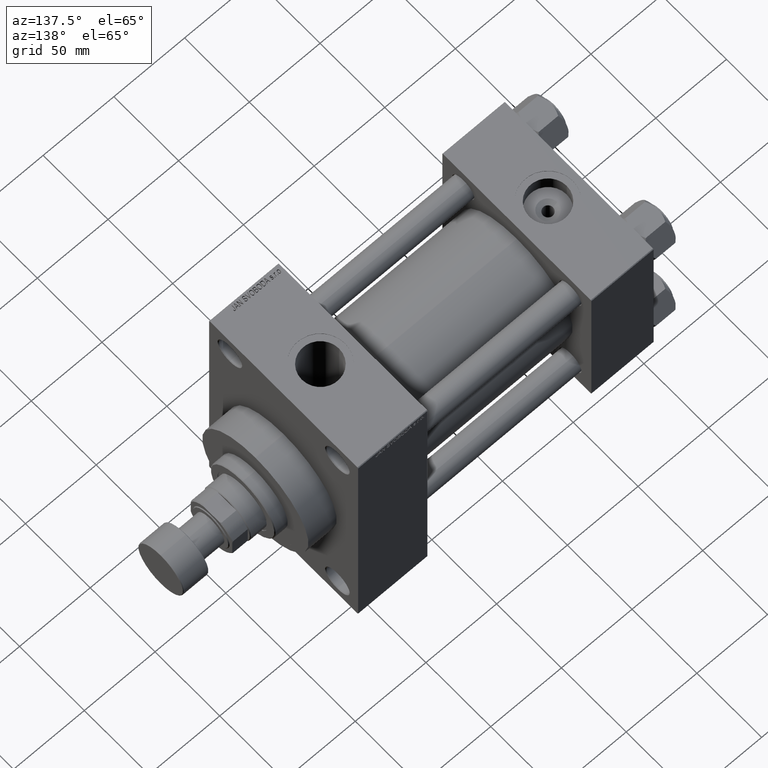
[diagram: clean part render]
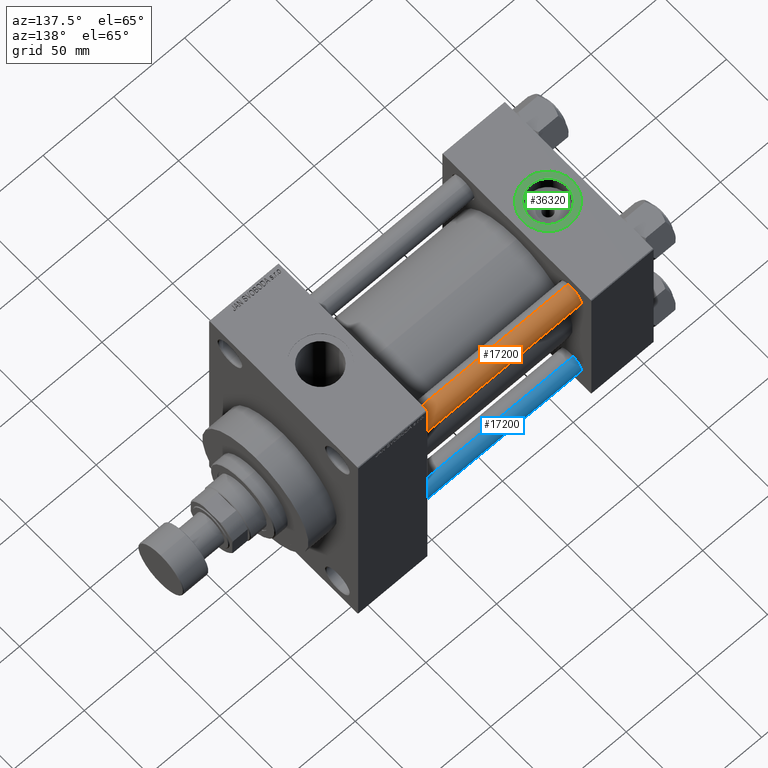
[diagram: same view with three faces highlighted in distinct colors, each labeled with its STEP entity id]
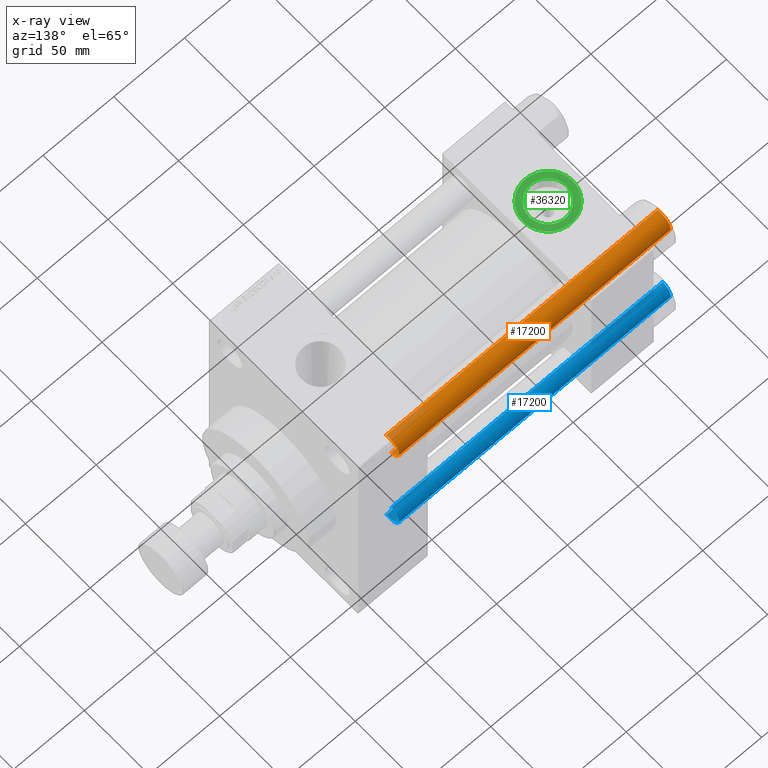
[diagram: x-ray of the same camera — body ghosted, the three highlighted faces saturated]
A machine part, auxiliary view with three faces highlighted in distinct colors.
The next image is the same camera in x-ray (body ghosted, the three faces saturated) — at least one of them is partly hidden behind the body in this view.
Their STEP definitions:

[orange] entity #17200 — the highlighted cylindrical surface (edge-blend (fillet) strip) has radius 8 mm, axis along (-1, -0, 0).
#291 = VECTOR ( 'NONE', #33775, 1000.000000000000000 ) ;
#482 = CYLINDRICAL_SURFACE ( 'NONE', #48120, 8.000000000000000000 ) ;
#1542 = VERTEX_POINT ( 'NONE', #43551 ) ;
#1928 = CARTESIAN_POINT ( 'NONE',  ( 8.000000000000000000, 9.797174393178825657E-16, 192.4999999999999716 ) ) ;
#4081 = LINE ( 'NONE', #23046, #291 ) ;
#8041 = CARTESIAN_POINT ( 'NONE',  ( 0.000000000000000000, 0.000000000000000000, 193.0000000000000000 ) ) ;
#8276 = FACE_OUTER_BOUND ( 'NONE', #18537, .T. ) ;
#9064 = CIRCLE ( 'NONE', #12205, 8.000000000000000000 ) ;
#11379 = DIRECTION ( 'NONE',  ( -0.000000000000000000, -0.000000000000000000, -1.000000000000000000 ) ) ;
#11991 = VERTEX_POINT ( 'NONE', #28298 ) ;
#12205 = AXIS2_PLACEMENT_3D ( 'NONE', #24014, #12840, #27659 ) ;
#12840 = DIRECTION ( 'NONE',  ( 0.000000000000000000, 0.000000000000000000, -1.000000000000000000 ) ) ;
#12929 = DIRECTION ( 'NONE',  ( -0.000000000000000000, -0.000000000000000000, 1.000000000000000000 ) ) ;
#13160 = CARTESIAN_POINT ( 'NONE',  ( 0.000000000000000000, 0.000000000000000000, 0.5000000000000559552 ) ) ;
#13792 = EDGE_CURVE ( 'NONE', #21704, #1542, #4081, .T. ) ;
#17048 = DIRECTION ( 'NONE',  ( 1.000000000000000000, 0.000000000000000000, 0.000000000000000000 ) ) ;
#17200 = ADVANCED_FACE ( 'NONE', ( #8276 ), #482, .T. ) ;
#17228 = ORIENTED_EDGE ( 'NONE', *, *, #31314, .T. ) ;
#17677 = AXIS2_PLACEMENT_3D ( 'NONE', #13160, #12929, #17048 ) ;
#18537 = EDGE_LOOP ( 'NONE', ( #17228, #21096, #20101, #38857 ) ) ;
#20101 = ORIENTED_EDGE ( 'NONE', *, *, #36361, .T. ) ;
#20808 = EDGE_CURVE ( 'NONE', #11991, #23918, #44232, .T. ) ;
#21096 = ORIENTED_EDGE ( 'NONE', *, *, #13792, .T. ) ;
#21704 = VERTEX_POINT ( 'NONE', #1928 ) ;
#23046 = CARTESIAN_POINT ( 'NONE',  ( 8.000000000000000000, 9.797174393178825657E-16, 193.0000000000000000 ) ) ;
#23918 = VERTEX_POINT ( 'NONE', #41532 ) ;
#24014 = CARTESIAN_POINT ( 'NONE',  ( 0.000000000000000000, 0.000000000000000000, 192.4999999999999716 ) ) ;
#27659 = DIRECTION ( 'NONE',  ( 1.000000000000000000, 0.000000000000000000, 0.000000000000000000 ) ) ;
#28298 = CARTESIAN_POINT ( 'NONE',  ( -8.000000000000000000, 0.000000000000000000, 192.4999999999999716 ) ) ;
#29866 = CARTESIAN_POINT ( 'NONE',  ( -8.000000000000000000, 0.000000000000000000, 193.0000000000000000 ) ) ;
#30170 = DIRECTION ( 'NONE',  ( -1.000000000000000000, 0.000000000000000000, 0.000000000000000000 ) ) ;
#31314 = EDGE_CURVE ( 'NONE', #11991, #21704, #9064, .T. ) ;
#33775 = DIRECTION ( 'NONE',  ( -0.000000000000000000, -0.000000000000000000, -1.000000000000000000 ) ) ;
#34544 = DIRECTION ( 'NONE',  ( -0.000000000000000000, -0.000000000000000000, -1.000000000000000000 ) ) ;
#35266 = VECTOR ( 'NONE', #11379, 1000.000000000000000 ) ;
#36361 = EDGE_CURVE ( 'NONE', #1542, #23918, #48005, .T. ) ;
#38857 = ORIENTED_EDGE ( 'NONE', *, *, #20808, .F. ) ;
#41532 = CARTESIAN_POINT ( 'NONE',  ( -8.000000000000000000, 0.000000000000000000, 0.5000000000000559552 ) ) ;
#43551 = CARTESIAN_POINT ( 'NONE',  ( 8.000000000000000000, 9.797174393178825657E-16, 0.5000000000000559552 ) ) ;
#44232 = LINE ( 'NONE', #29866, #35266 ) ;
#48005 = CIRCLE ( 'NONE', #17677, 8.000000000000000000 ) ;
#48120 = AXIS2_PLACEMENT_3D ( 'NONE', #8041, #34544, #30170 ) ;

[blue] entity #17200 — the highlighted cylindrical surface (edge-blend (fillet) strip) has radius 8 mm, axis along (1, -0, 0).
#291 = VECTOR ( 'NONE', #33775, 1000.000000000000000 ) ;
#482 = CYLINDRICAL_SURFACE ( 'NONE', #48120, 8.000000000000000000 ) ;
#1542 = VERTEX_POINT ( 'NONE', #43551 ) ;
#1928 = CARTESIAN_POINT ( 'NONE',  ( 8.000000000000000000, 9.797174393178825657E-16, 192.4999999999999716 ) ) ;
#4081 = LINE ( 'NONE', #23046, #291 ) ;
#8041 = CARTESIAN_POINT ( 'NONE',  ( 0.000000000000000000, 0.000000000000000000, 193.0000000000000000 ) ) ;
#8276 = FACE_OUTER_BOUND ( 'NONE', #18537, .T. ) ;
#9064 = CIRCLE ( 'NONE', #12205, 8.000000000000000000 ) ;
#11379 = DIRECTION ( 'NONE',  ( -0.000000000000000000, -0.000000000000000000, -1.000000000000000000 ) ) ;
#11991 = VERTEX_POINT ( 'NONE', #28298 ) ;
#12205 = AXIS2_PLACEMENT_3D ( 'NONE', #24014, #12840, #27659 ) ;
#12840 = DIRECTION ( 'NONE',  ( 0.000000000000000000, 0.000000000000000000, -1.000000000000000000 ) ) ;
#12929 = DIRECTION ( 'NONE',  ( -0.000000000000000000, -0.000000000000000000, 1.000000000000000000 ) ) ;
#13160 = CARTESIAN_POINT ( 'NONE',  ( 0.000000000000000000, 0.000000000000000000, 0.5000000000000559552 ) ) ;
#13792 = EDGE_CURVE ( 'NONE', #21704, #1542, #4081, .T. ) ;
#17048 = DIRECTION ( 'NONE',  ( 1.000000000000000000, 0.000000000000000000, 0.000000000000000000 ) ) ;
#17200 = ADVANCED_FACE ( 'NONE', ( #8276 ), #482, .T. ) ;
#17228 = ORIENTED_EDGE ( 'NONE', *, *, #31314, .T. ) ;
#17677 = AXIS2_PLACEMENT_3D ( 'NONE', #13160, #12929, #17048 ) ;
#18537 = EDGE_LOOP ( 'NONE', ( #17228, #21096, #20101, #38857 ) ) ;
#20101 = ORIENTED_EDGE ( 'NONE', *, *, #36361, .T. ) ;
#20808 = EDGE_CURVE ( 'NONE', #11991, #23918, #44232, .T. ) ;
#21096 = ORIENTED_EDGE ( 'NONE', *, *, #13792, .T. ) ;
#21704 = VERTEX_POINT ( 'NONE', #1928 ) ;
#23046 = CARTESIAN_POINT ( 'NONE',  ( 8.000000000000000000, 9.797174393178825657E-16, 193.0000000000000000 ) ) ;
#23918 = VERTEX_POINT ( 'NONE', #41532 ) ;
#24014 = CARTESIAN_POINT ( 'NONE',  ( 0.000000000000000000, 0.000000000000000000, 192.4999999999999716 ) ) ;
#27659 = DIRECTION ( 'NONE',  ( 1.000000000000000000, 0.000000000000000000, 0.000000000000000000 ) ) ;
#28298 = CARTESIAN_POINT ( 'NONE',  ( -8.000000000000000000, 0.000000000000000000, 192.4999999999999716 ) ) ;
#29866 = CARTESIAN_POINT ( 'NONE',  ( -8.000000000000000000, 0.000000000000000000, 193.0000000000000000 ) ) ;
#30170 = DIRECTION ( 'NONE',  ( -1.000000000000000000, 0.000000000000000000, 0.000000000000000000 ) ) ;
#31314 = EDGE_CURVE ( 'NONE', #11991, #21704, #9064, .T. ) ;
#33775 = DIRECTION ( 'NONE',  ( -0.000000000000000000, -0.000000000000000000, -1.000000000000000000 ) ) ;
#34544 = DIRECTION ( 'NONE',  ( -0.000000000000000000, -0.000000000000000000, -1.000000000000000000 ) ) ;
#35266 = VECTOR ( 'NONE', #11379, 1000.000000000000000 ) ;
#36361 = EDGE_CURVE ( 'NONE', #1542, #23918, #48005, .T. ) ;
#38857 = ORIENTED_EDGE ( 'NONE', *, *, #20808, .F. ) ;
#41532 = CARTESIAN_POINT ( 'NONE',  ( -8.000000000000000000, 0.000000000000000000, 0.5000000000000559552 ) ) ;
#43551 = CARTESIAN_POINT ( 'NONE',  ( 8.000000000000000000, 9.797174393178825657E-16, 0.5000000000000559552 ) ) ;
#44232 = LINE ( 'NONE', #29866, #35266 ) ;
#48005 = CIRCLE ( 'NONE', #17677, 8.000000000000000000 ) ;
#48120 = AXIS2_PLACEMENT_3D ( 'NONE', #8041, #34544, #30170 ) ;

[green] entity #36320 — the highlighted planar face has unit normal (0, 0, 1).
#365 = CARTESIAN_POINT ( 'NONE',  ( 8.779999999999994031, -7.054634311411234321E-15, 57.30000000000000426 ) ) ;
#1009 = FACE_BOUND ( 'NONE', #30908, .T. ) ;
#1014 = AXIS2_PLACEMENT_3D ( 'NONE', #15430, #26603, #22961 ) ;
#1075 = CARTESIAN_POINT ( 'NONE',  ( 4.499999999999997335, -6.530485481376167224E-15, 57.30000000000000426 ) ) ;
#1483 = ORIENTED_EDGE ( 'NONE', *, *, #29130, .T. ) ;
#2682 = FACE_OUTER_BOUND ( 'NONE', #38482, .T. ) ;
#4838 = AXIS2_PLACEMENT_3D ( 'NONE', #32774, #35930, #28618 ) ;
#7572 = AXIS2_PLACEMENT_3D ( 'NONE', #24578, #46263, #47214 ) ;
#8698 = CIRCLE ( 'NONE', #4838, 13.22000000000000242 ) ;
#9838 = EDGE_CURVE ( 'NONE', #16691, #12571, #8698, .T. ) ;
#11460 = DIRECTION ( 'NONE',  ( 0.000000000000000000, 0.000000000000000000, 1.000000000000000000 ) ) ;
#12571 = VERTEX_POINT ( 'NONE', #365 ) ;
#12660 = CIRCLE ( 'NONE', #1014, 17.50000000000000000 ) ;
#12696 = VERTEX_POINT ( 'NONE', #1075 ) ;
#12871 = ORIENTED_EDGE ( 'NONE', *, *, #19029, .T. ) ;
#13207 = DIRECTION ( 'NONE',  ( 0.000000000000000000, 0.000000000000000000, 1.000000000000000000 ) ) ;
#13699 = CARTESIAN_POINT ( 'NONE',  ( 35.21999999999999886, -8.673617379884035472E-15, 57.30000000000000426 ) ) ;
#14411 = EDGE_CURVE ( 'NONE', #12571, #16691, #45385, .T. ) ;
#15226 = AXIS2_PLACEMENT_3D ( 'NONE', #38754, #13207, #20264 ) ;
#15430 = CARTESIAN_POINT ( 'NONE',  ( 22.00000000000000000, -8.673617379884035472E-15, 57.30000000000000426 ) ) ;
#16691 = VERTEX_POINT ( 'NONE', #13699 ) ;
#17405 = AXIS2_PLACEMENT_3D ( 'NONE', #37490, #11460, #19232 ) ;
#18191 = ORIENTED_EDGE ( 'NONE', *, *, #9838, .F. ) ;
#19029 = EDGE_CURVE ( 'NONE', #19905, #12696, #12660, .T. ) ;
#19232 = DIRECTION ( 'NONE',  ( 1.000000000000000000, 0.000000000000000000, 0.000000000000000000 ) ) ;
#19905 = VERTEX_POINT ( 'NONE', #32311 ) ;
#20264 = DIRECTION ( 'NONE',  ( 1.000000000000000000, 0.000000000000000000, 0.000000000000000000 ) ) ;
#22961 = DIRECTION ( 'NONE',  ( 1.000000000000000000, 0.000000000000000000, 0.000000000000000000 ) ) ;
#24105 = PLANE ( 'NONE',  #7572 ) ;
#24578 = CARTESIAN_POINT ( 'NONE',  ( 22.00000000000000000, -8.673617379884035472E-15, 57.30000000000000426 ) ) ;
#26603 = DIRECTION ( 'NONE',  ( 0.000000000000000000, 0.000000000000000000, 1.000000000000000000 ) ) ;
#28618 = DIRECTION ( 'NONE',  ( 1.000000000000000000, 0.000000000000000000, 0.000000000000000000 ) ) ;
#29130 = EDGE_CURVE ( 'NONE', #12696, #19905, #46304, .T. ) ;
#30908 = EDGE_LOOP ( 'NONE', ( #18191, #32825 ) ) ;
#32311 = CARTESIAN_POINT ( 'NONE',  ( 39.50000000000000000, -8.673617379884035472E-15, 57.30000000000000426 ) ) ;
#32774 = CARTESIAN_POINT ( 'NONE',  ( 22.00000000000000000, -8.673617379884035472E-15, 57.30000000000000426 ) ) ;
#32825 = ORIENTED_EDGE ( 'NONE', *, *, #14411, .F. ) ;
#35930 = DIRECTION ( 'NONE',  ( 0.000000000000000000, 0.000000000000000000, 1.000000000000000000 ) ) ;
#36320 = ADVANCED_FACE ( 'NONE', ( #1009, #2682 ), #24105, .T. ) ;
#37490 = CARTESIAN_POINT ( 'NONE',  ( 22.00000000000000000, -8.673617379884035472E-15, 57.30000000000000426 ) ) ;
#38482 = EDGE_LOOP ( 'NONE', ( #12871, #1483 ) ) ;
#38754 = CARTESIAN_POINT ( 'NONE',  ( 22.00000000000000000, -8.673617379884035472E-15, 57.30000000000000426 ) ) ;
#45385 = CIRCLE ( 'NONE', #17405, 13.22000000000000242 ) ;
#46263 = DIRECTION ( 'NONE',  ( 0.000000000000000000, 0.000000000000000000, 1.000000000000000000 ) ) ;
#46304 = CIRCLE ( 'NONE', #15226, 17.50000000000000000 ) ;
#47214 = DIRECTION ( 'NONE',  ( 1.000000000000000000, 0.000000000000000000, -0.000000000000000000 ) ) ;